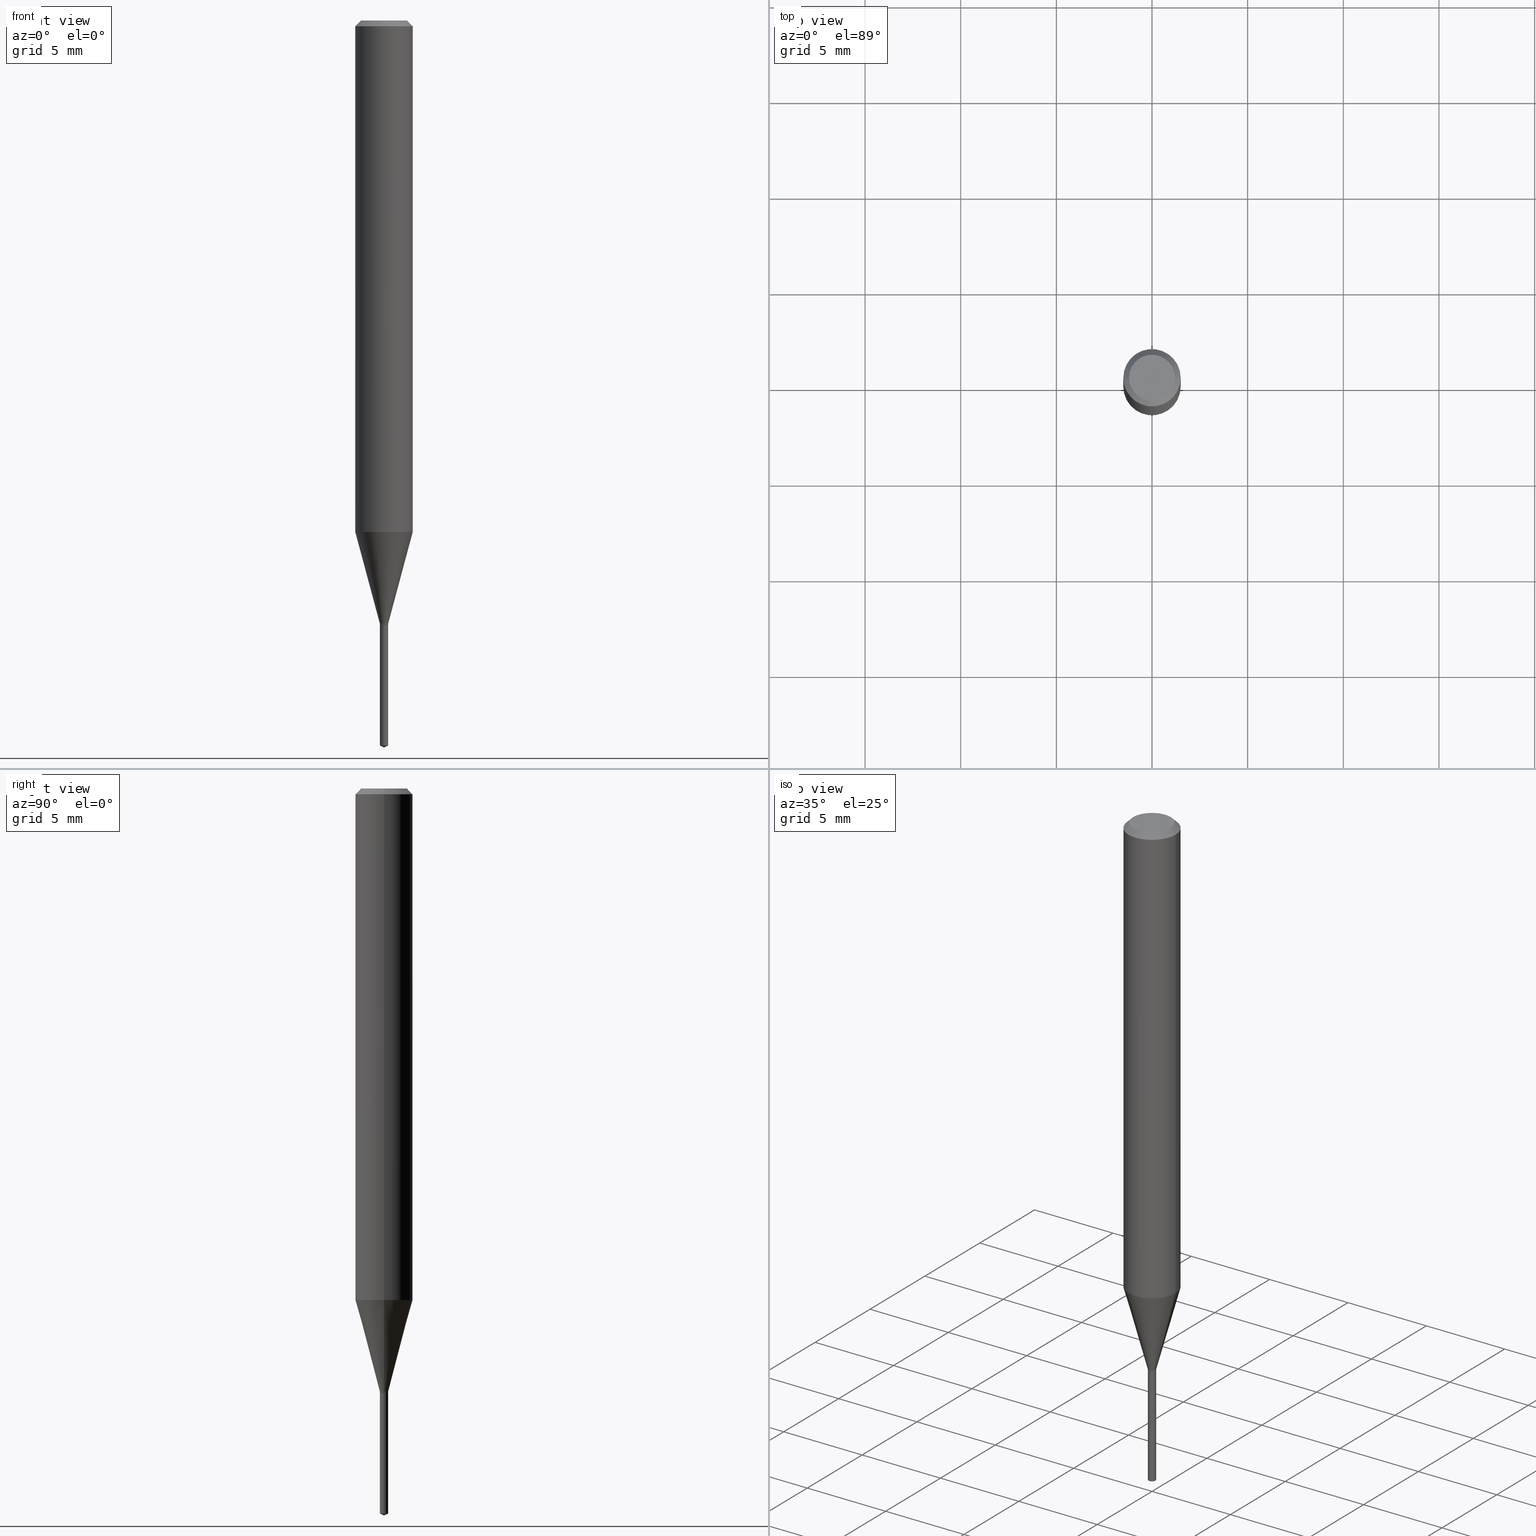
[diagram: canonical four-view strip — front | top / right | iso, engineering-drawing reading convention]
A machine part, canonical four-view strip (front | top / right | iso — engineering-drawing reading convention). The complete STEP part file that produces these views, byte-faithful:
ISO-10303-21;
HEADER;
FILE_DESCRIPTION (( 'STEP AP203' ),
    '1' );
FILE_NAME ('07762.STEP',
    '2024-04-24T02:29:43',
    ( '' ),
    ( '' ),
    'SwSTEP 2.0',
    'SolidWorks 2023',
    '' );
FILE_SCHEMA (( 'CONFIG_CONTROL_DESIGN' ));
ENDSEC;

DATA;
#1 = CALENDAR_DATE ( 2024, 23, 4 ) ;
#2 = ORIENTED_EDGE ( 'NONE', *, *, #407, .F. ) ;
#3 = DIRECTION ( 'NONE',  ( -6.982962677686265922E-15, -1.000000000000000000, 0.000000000000000000 ) ) ;
#4 = ORIENTED_EDGE ( 'NONE', *, *, #159, .F. ) ;
#5 = CIRCLE ( 'NONE', #366, 0.008449999999999999178 ) ;
#6 = LINE ( 'NONE', #398, #98 ) ;
#7 = VERTEX_POINT ( 'NONE', #429 ) ;
#8 = PERSON_AND_ORGANIZATION ( #271, #49 ) ;
#9 = DIRECTION ( 'NONE',  ( -2.445468806185136597E-29, 3.491481338843145583E-15, 1.000000000000000000 ) ) ;
#10 = PERSON_AND_ORGANIZATION_ROLE ( 'design_owner' ) ;
#11 = DIRECTION ( 'NONE',  ( 0.7071067811865453523, -7.319954787623248157E-15, -0.7071067811865496822 ) ) ;
#12 = CIRCLE ( 'NONE', #211, 0.05904999999999999832 ) ;
#13 = ADVANCED_FACE ( 'NONE', ( #458 ), #180, .T. ) ;
#14 = ORIENTED_EDGE ( 'NONE', *, *, #324, .F. ) ;
#15 = ORIENTED_EDGE ( 'NONE', *, *, #364, .T. ) ;
#16 = AXIS2_PLACEMENT_3D ( 'NONE', #413, #377, #486 ) ;
#17 = AXIS2_PLACEMENT_3D ( 'NONE', #328, #215, #233 ) ;
#18 = EDGE_CURVE ( 'NONE', #230, #111, #453, .T. ) ;
#19 = ORIENTED_EDGE ( 'NONE', *, *, #74, .F. ) ;
#20 = DIRECTION ( 'NONE',  ( -2.445468806185136597E-29, 3.491481338843145583E-15, 1.000000000000000000 ) ) ;
#21 = PLANE ( 'NONE',  #322 ) ;
#22 = AXIS2_PLACEMENT_3D ( 'NONE', #410, #183, #331 ) ;
#23 = CARTESIAN_POINT ( 'NONE',  ( 8.265746106709734507E-48, -1.180129479067563789E-33, -3.380025165646692144E-19 ) ) ;
#24 = DIRECTION ( 'NONE',  ( -2.445468806185136597E-29, 3.491481338843145583E-15, 1.000000000000000000 ) ) ;
#25 = CARTESIAN_POINT ( 'NONE',  ( 3.036294069759465269E-29, -4.335023230307649634E-15, -1.241600000000000037 ) ) ;
#26 = EDGE_LOOP ( 'NONE', ( #80, #388, #32, #199 ) ) ;
#27 = LINE ( 'NONE', #222, #467 ) ;
#28 = FACE_OUTER_BOUND ( 'NONE', #319, .T. ) ;
#29 = CARTESIAN_POINT ( 'NONE',  ( -5.900603462641245587E-17, -0.008450000000005210288, -1.492159700288590019 ) ) ;
#30 = FACE_OUTER_BOUND ( 'NONE', #422, .T. ) ;
#31 = ORIENTED_EDGE ( 'NONE', *, *, #254, .T. ) ;
#32 = ORIENTED_EDGE ( 'NONE', *, *, #231, .T. ) ;
#33 = ADVANCED_FACE ( 'NONE', ( #196 ), #345, .T. ) ;
#34 = CARTESIAN_POINT ( 'NONE',  ( 2.574487409809273648E-29, -3.675685711345442861E-15, -1.052758229137014556 ) ) ;
#35 = DIRECTION ( 'NONE',  ( 1.000000000000000000, -6.982962677686293532E-15, 0.000000000000000000 ) ) ;
#36 = LINE ( 'NONE', #192, #403 ) ;
#37 = VERTEX_POINT ( 'NONE', #157 ) ;
#38 = ADVANCED_FACE ( 'NONE', ( #107 ), #282, .T. ) ;
#39 = AXIS2_PLACEMENT_3D ( 'NONE', #146, #416, #376 ) ;
#40 = ORIENTED_EDGE ( 'NONE', *, *, #359, .F. ) ;
#41 = ORIENTED_EDGE ( 'NONE', *, *, #234, .F. ) ;
#42 = CARTESIAN_POINT ( 'NONE',  ( -0.008449999999999999178, -4.278473850474763688E-15, -1.243600000000000039 ) ) ;
#43 = APPROVAL_PERSON_ORGANIZATION ( #242, #83, #169 ) ;
#44 = LENGTH_MEASURE_WITH_UNIT ( LENGTH_MEASURE( 0.02539999999999999897 ), #414 );
#45 = DIRECTION ( 'NONE',  ( 1.000000000000000000, -6.982962677686293532E-15, 0.000000000000000000 ) ) ;
#46 = ORIENTED_EDGE ( 'NONE', *, *, #234, .T. ) ;
#47 = CARTESIAN_POINT ( 'NONE',  ( 0.007949999999999998734, -4.399266486942363332E-15, -1.244099999999999984 ) ) ;
#48 = CARTESIAN_POINT ( 'NONE',  ( 0.000000000000000000, 0.000000000000000000, 0.000000000000000000 ) ) ;
#49 = ORGANIZATION ( 'UNSPECIFIED', 'UNSPECIFIED', '' ) ;
#50 = CARTESIAN_POINT ( 'NONE',  ( 3.649026084519317183E-29, -5.209853356614744857E-15, -1.492159700288590019 ) ) ;
#51 = PERSON_AND_ORGANIZATION ( #271, #49 ) ;
#52 = CARTESIAN_POINT ( 'NONE',  ( 6.004086117176494469E-17, 0.008449999999994789804, -1.492159700288590019 ) ) ;
#53 = ADVANCED_FACE ( 'NONE', ( #474 ), #352, .T. ) ;
#54 = ORIENTED_EDGE ( 'NONE', *, *, #342, .T. ) ;
#55 = APPLICATION_PROTOCOL_DEFINITION ( 'international standard', 'config_control_design', 1994, #238 ) ;
#56 = MANIFOLD_SOLID_BREP ( 'Body-Move/Copy2[2]', #119 ) ;
#57 = APPROVAL_ROLE ( '' ) ;
#58 = APPROVAL ( #95, 'UNSPECIFIED' ) ;
#59 = CALENDAR_DATE ( 2024, 23, 4 ) ;
#60 = CC_DESIGN_SECURITY_CLASSIFICATION ( #201, ( #191 ) ) ;
#61 = FACE_OUTER_BOUND ( 'NONE', #363, .T. ) ;
#62 = VERTEX_POINT ( 'NONE', #204 ) ;
#63 = CARTESIAN_POINT ( 'NONE',  ( -0.04724000000000000421, 3.504923541997677355E-16, -3.380025165670481712E-19 ) ) ;
#64 = APPLICATION_PROTOCOL_DEFINITION ( 'international standard', 'config_control_design', 1994, #310 ) ;
#65 = VECTOR ( 'NONE', #355, 39.37007874015748143 ) ;
#66 = LOCAL_TIME ( 22, 29, 43.00000000000000000, #351 ) ;
#67 = ORIENTED_EDGE ( 'NONE', *, *, #178, .T. ) ;
#68 = DIRECTION ( 'NONE',  ( -0.7071067811865453523, 2.468850131082234184E-15, -0.7071067811865496822 ) ) ;
#69 = CARTESIAN_POINT ( 'NONE',  ( -0.007949999999999998734, -4.284614558987718685E-15, -1.244099999999999984 ) ) ;
#70 =( CONVERSION_BASED_UNIT ( 'INCH', #44 ) LENGTH_UNIT ( ) NAMED_UNIT ( #348 ) );
#71 = ORIENTED_EDGE ( 'NONE', *, *, #315, .T. ) ;
#72 = DIRECTION ( 'NONE',  ( 6.982962677686265922E-15, 1.000000000000000000, -3.491503948252676363E-15 ) ) ;
#73 = DIRECTION ( 'NONE',  ( -6.982962677686265922E-15, -1.000000000000000000, 0.000000000000000000 ) ) ;
#74 = EDGE_CURVE ( 'NONE', #7, #210, #170, .T. ) ;
#75 = DIRECTION ( 'NONE',  ( 1.000000000000000000, -6.982962677686266711E-15, 4.876185090822587894E-29 ) ) ;
#76 = LINE ( 'NONE', #480, #164 ) ;
#77 = ADVANCED_FACE ( 'NONE', ( #61 ), #21, .F. ) ;
#78 = VERTEX_POINT ( 'NONE', #29 ) ;
#79 = VECTOR ( 'NONE', #89, 39.37007874015748854 ) ;
#80 = ORIENTED_EDGE ( 'NONE', *, *, #281, .F. ) ;
#81 = LOCAL_TIME ( 22, 29, 43.00000000000000000, #278 ) ;
#82 = CARTESIAN_POINT ( 'NONE',  ( 3.042407741774928155E-29, -4.343751933654757151E-15, -1.244099999999999984 ) ) ;
#83 = APPROVAL ( #400, 'UNSPECIFIED' ) ;
#84 = COORDINATED_UNIVERSAL_TIME_OFFSET ( 5, 0, .BEHIND. ) ;
#85 = DIRECTION ( 'NONE',  ( -2.445453018118844559E-29, 3.491503948252676758E-15, 1.000000000000000000 ) ) ;
#86 = CARTESIAN_POINT ( 'NONE',  ( 3.036294069759465269E-29, -4.335023230307649634E-15, -1.241600000000000037 ) ) ;
#87 = CIRCLE ( 'NONE', #147, 0.008449999999999999178 ) ;
#88 = DATE_AND_TIME ( #432, #435 ) ;
#89 = DIRECTION ( 'NONE',  ( 6.439704144416976711E-15, 0.9063077870366447186, 0.4226182617407108211 ) ) ;
#90 = APPROVAL ( #123, 'UNSPECIFIED' ) ;
#91 = EDGE_CURVE ( 'NONE', #153, #273, #239, .T. ) ;
#92 = CIRCLE ( 'NONE', #321, 0.007949999999999998734 ) ;
#93 = VECTOR ( 'NONE', #419, 39.37007874015748143 ) ;
#94 = APPROVAL_DATE_TIME ( #475, #58 ) ;
#95 = APPROVAL_STATUS ( 'not_yet_approved' ) ;
#96 = VERTEX_POINT ( 'NONE', #182 ) ;
#97 = DIRECTION ( 'NONE',  ( -6.982962677686265922E-15, -1.000000000000000000, 0.000000000000000000 ) ) ;
#98 = VECTOR ( 'NONE', #357, 39.37007874015748143 ) ;
#99 = UNCERTAINTY_MEASURE_WITH_UNIT (LENGTH_MEASURE( 1.000000000000000082E-05 ), #70, 'distance_accuracy_value', 'NONE');
#100 = CARTESIAN_POINT ( 'NONE',  ( 3.042407741774928155E-29, -4.343751933654757151E-15, -1.244099999999999984 ) ) ;
#101 = FACE_OUTER_BOUND ( 'NONE', #139, .T. ) ;
#102 = ORIENTED_EDGE ( 'NONE', *, *, #91, .T. ) ;
#103 = DIRECTION ( 'NONE',  ( -2.445453018118844278E-29, 3.491503948252676363E-15, 1.000000000000000000 ) ) ;
#104 = CARTESIAN_POINT ( 'NONE',  ( 2.888098660104664204E-31, -4.123439461173780263E-17, -0.01181000000000007218 ) ) ;
#105 = DIRECTION ( 'NONE',  ( -2.445453018118844559E-29, 3.491503948252676758E-15, 1.000000000000000000 ) ) ;
#106 = CIRCLE ( 'NONE', #412, 0.04724000000000000421 ) ;
#107 = FACE_OUTER_BOUND ( 'NONE', #305, .T. ) ;
#108 = LOCAL_TIME ( 22, 29, 43.00000000000000000, #84 ) ;
#109 = FACE_OUTER_BOUND ( 'NONE', #26, .T. ) ;
#110 = DIRECTION ( 'NONE',  ( -2.445468806185136597E-29, 3.491481338843145583E-15, 1.000000000000000000 ) ) ;
#111 = VERTEX_POINT ( 'NONE', #367 ) ;
#112 = LINE ( 'NONE', #227, #392 ) ;
#113 = ORIENTED_EDGE ( 'NONE', *, *, #232, .T. ) ;
#114 = ORIENTED_EDGE ( 'NONE', *, *, #342, .F. ) ;
#115 = DIRECTION ( 'NONE',  ( 1.000000000000000000, -6.982962677686264344E-15, 0.000000000000000000 ) ) ;
#116 = DIRECTION ( 'NONE',  ( -2.445453018118844559E-29, 3.491503948252676758E-15, 1.000000000000000000 ) ) ;
#117 = CARTESIAN_POINT ( 'NONE',  ( 3.041185007371835914E-29, -4.342006192985336437E-15, -1.243600000000000039 ) ) ;
#118 = ORIENTED_EDGE ( 'NONE', *, *, #161, .T. ) ;
#119 = CLOSED_SHELL ( 'NONE', ( #417, #134, #198, #13, #53, #246, #438, #33, #473, #168, #437, #280 ) ) ;
#120 = AXIS2_PLACEMENT_3D ( 'NONE', #34, #482, #115 ) ;
#121 = EDGE_LOOP ( 'NONE', ( #223, #375, #225, #197 ) ) ;
#122 = DIRECTION ( 'NONE',  ( 1.000000000000000000, -6.982962677686291165E-15, 0.000000000000000000 ) ) ;
#123 = APPROVAL_STATUS ( 'not_yet_approved' ) ;
#124 = AXIS2_PLACEMENT_3D ( 'NONE', #262, #430, #326 ) ;
#125 = AXIS2_PLACEMENT_3D ( 'NONE', #421, #261, #73 ) ;
#126 = EDGE_CURVE ( 'NONE', #62, #210, #163, .T. ) ;
#127 = ORIENTED_EDGE ( 'NONE', *, *, #137, .F. ) ;
#128 = ORIENTED_EDGE ( 'NONE', *, *, #456, .T. ) ;
#129 = ORIENTED_EDGE ( 'NONE', *, *, #161, .F. ) ;
#130 = ORIENTED_EDGE ( 'NONE', *, *, #281, .T. ) ;
#131 = CC_DESIGN_PERSON_AND_ORGANIZATION_ASSIGNMENT ( #51, #10, ( #402 ) ) ;
#132 = PRODUCT_RELATED_PRODUCT_CATEGORY ( 'detail', '', ( #402 ) ) ;
#133 = ORIENTED_EDGE ( 'NONE', *, *, #126, .F. ) ;
#134 = ADVANCED_FACE ( 'NONE', ( #109 ), #311, .T. ) ;
#135 = AXIS2_PLACEMENT_3D ( 'NONE', #464, #162, #97 ) ;
#136 = AXIS2_PLACEMENT_3D ( 'NONE', #25, #442, #35 ) ;
#137 = EDGE_CURVE ( 'NONE', #210, #62, #288, .T. ) ;
#138 = DIRECTION ( 'NONE',  ( -2.445468806185136877E-29, 3.491481338843145188E-15, 1.000000000000000000 ) ) ;
#139 = EDGE_LOOP ( 'NONE', ( #214, #298, #267, #133 ) ) ;
#140 = CC_DESIGN_PERSON_AND_ORGANIZATION_ASSIGNMENT ( #302, #461, ( #201 ) ) ;
#141 = DIRECTION ( 'NONE',  ( -2.445468806185136597E-29, 3.491481338843145583E-15, 1.000000000000000000 ) ) ;
#142 = DIRECTION ( 'NONE',  ( 1.000000000000000000, -6.982962677686291165E-15, 0.000000000000000000 ) ) ;
#143 = DIRECTION ( 'NONE',  ( 1.000000000000000000, -6.982962677686266711E-15, 4.876176775795936353E-29 ) ) ;
#144 = ORIENTED_EDGE ( 'NONE', *, *, #178, .F. ) ;
#145 = CYLINDRICAL_SURFACE ( 'NONE', #313, 0.008449999999999999178 ) ;
#146 = CARTESIAN_POINT ( 'NONE',  ( 4.132873053354867254E-48, -5.900647395337818946E-34, -1.690012582823346072E-19 ) ) ;
#147 = AXIS2_PLACEMENT_3D ( 'NONE', #50, #401, #314 ) ;
#148 = LOCAL_TIME ( 22, 29, 43.00000000000000000, #247 ) ;
#149 = EDGE_LOOP ( 'NONE', ( #379, #15, #127, #19 ) ) ;
#150 = CARTESIAN_POINT ( 'NONE',  ( 8.265746106709734507E-48, -1.180129479067563789E-33, -3.380025165646692144E-19 ) ) ;
#151 = VERTEX_POINT ( 'NONE', #69 ) ;
#152 = CARTESIAN_POINT ( 'NONE',  ( -0.008449999999999999178, 6.004086117172845987E-17, -4.156500151265395353E-31 ) ) ;
#153 = VERTEX_POINT ( 'NONE', #286 ) ;
#154 = ORIENTED_EDGE ( 'NONE', *, *, #315, .F. ) ;
#155 = LINE ( 'NONE', #455, #391 ) ;
#156 = FACE_OUTER_BOUND ( 'NONE', #268, .T. ) ;
#157 = CARTESIAN_POINT ( 'NONE',  ( -5.900603462641852024E-17, -0.008450000000004342926, -1.244099999999999984 ) ) ;
#158 = DIRECTION ( 'NONE',  ( -2.445468806185136597E-29, 3.491481338843145583E-15, 1.000000000000000000 ) ) ;
#159 = EDGE_CURVE ( 'NONE', #151, #263, #470, .T. ) ;
#160 = PERSON_AND_ORGANIZATION_ROLE ( 'design_supplier' ) ;
#161 = EDGE_CURVE ( 'NONE', #263, #151, #92, .T. ) ;
#162 = DIRECTION ( 'NONE',  ( -2.445453018118844559E-29, 3.491503948252676758E-15, 1.000000000000000000 ) ) ;
#163 = CIRCLE ( 'NONE', #448, 0.008449999999999999178 ) ;
#164 = VECTOR ( 'NONE', #224, 39.37007874015748854 ) ;
#165 = DIRECTION ( 'NONE',  ( 0.000000000000000000, 0.000000000000000000, 1.000000000000000000 ) ) ;
#166 = CARTESIAN_POINT ( 'NONE',  ( 2.888098660104664204E-31, -4.123439461173780263E-17, -0.01181000000000007218 ) ) ;
#167 = PERSON_AND_ORGANIZATION ( #271, #49 ) ;
#168 = ADVANCED_FACE ( 'NONE', ( #28 ), #188, .F. ) ;
#169 = APPROVAL_ROLE ( '' ) ;
#170 = LINE ( 'NONE', #312, #65 ) ;
#171 = ADVANCED_FACE ( 'NONE', ( #228 ), #175, .T. ) ;
#172 = CIRCLE ( 'NONE', #485, 0.05904999999999999832 ) ;
#173 = DATE_TIME_ROLE ( 'creation_date' ) ;
#174 = PRODUCT_DEFINITION ( 'UNKNOWN', '', #191, #285 ) ;
#175 = CONICAL_SURFACE ( 'NONE', #294, 84.42940631927042716, 1.134464013796298243 ) ;
#176 = CONICAL_SURFACE ( 'NONE', #361, 0.05904999999999999832, 0.7853981633974452814 ) ;
#177 = CC_DESIGN_DATE_AND_TIME_ASSIGNMENT ( #356, #173, ( #174 ) ) ;
#178 = EDGE_CURVE ( 'NONE', #62, #153, #155, .T. ) ;
#179 = EDGE_CURVE ( 'NONE', #230, #78, #87, .T. ) ;
#180 = CONICAL_SURFACE ( 'NONE', #229, 0.008449999999999999178, 0.2617993877991499074 ) ;
#181 = VECTOR ( 'NONE', #138, 39.37007874015748143 ) ;
#182 = CARTESIAN_POINT ( 'NONE',  ( 0.04724000000000000421, -3.852183633974369345E-16, -3.380025165621689721E-19 ) ) ;
#183 = DIRECTION ( 'NONE',  ( -2.445468806185136597E-29, 3.491481338843145583E-15, 1.000000000000000000 ) ) ;
#184 = LINE ( 'NONE', #426, #219 ) ;
#185 = DIRECTION ( 'NONE',  ( -2.445468806185136597E-29, 3.491481338843145583E-15, 1.000000000000000000 ) ) ;
#186 = ORIENTED_EDGE ( 'NONE', *, *, #179, .F. ) ;
#187 = DIRECTION ( 'NONE',  ( 1.000000000000000000, -6.982962677686266711E-15, 0.000000000000000000 ) ) ;
#188 = PLANE ( 'NONE',  #39 ) ;
#189 = CARTESIAN_POINT ( 'NONE',  ( 2.888098660104664204E-31, -4.123439461173780263E-17, -0.01181000000000007218 ) ) ;
#190 = DIRECTION ( 'NONE',  ( 2.445468806185136597E-29, -3.491481338843145583E-15, -1.000000000000000000 ) ) ;
#191 = PRODUCT_DEFINITION_FORMATION_WITH_SPECIFIED_SOURCE ( 'ANY', '', #402, .NOT_KNOWN. ) ;
#192 = CARTESIAN_POINT ( 'NONE',  ( 0.05904999999999999832, -4.463468013801466955E-16, -0.01181000000000007218 ) ) ;
#193 = VERTEX_POINT ( 'NONE', #433 ) ;
#194 = LINE ( 'NONE', #445, #450 ) ;
#195 = CARTESIAN_POINT ( 'NONE',  ( -9.261901597635378744E-28, 1.322371744356641908E-13, 37.87397874015748300 ) ) ;
#196 = FACE_OUTER_BOUND ( 'NONE', #415, .T. ) ;
#197 = ORIENTED_EDGE ( 'NONE', *, *, #365, .F. ) ;
#198 = ADVANCED_FACE ( 'NONE', ( #244 ), #284, .T. ) ;
#199 = ORIENTED_EDGE ( 'NONE', *, *, #353, .F. ) ;
#200 = AXIS2_PLACEMENT_3D ( 'NONE', #220, #339, #372 ) ;
#201 = SECURITY_CLASSIFICATION ( '', '', #428 ) ;
#202 = CARTESIAN_POINT ( 'NONE',  ( 0.000000000000000000, 0.000000000000000000, 0.000000000000000000 ) ) ;
#203 = PERSON_AND_ORGANIZATION ( #271, #49 ) ;
#204 = CARTESIAN_POINT ( 'NONE',  ( -0.008449999999999999178, -4.278473850474763688E-15, -1.241600000000000037 ) ) ;
#205 = EDGE_CURVE ( 'NONE', #96, #193, #36, .T. ) ;
#206 = PERSON_AND_ORGANIZATION_ROLE ( 'creator' ) ;
#207 = CIRCLE ( 'NONE', #120, 0.05905000000000013710 ) ;
#208 = CC_DESIGN_DATE_AND_TIME_ASSIGNMENT ( #434, #250, ( #201 ) ) ;
#209 = ORIENTED_EDGE ( 'NONE', *, *, #213, .F. ) ;
#210 = VERTEX_POINT ( 'NONE', #243 ) ;
#211 = AXIS2_PLACEMENT_3D ( 'NONE', #166, #307, #236 ) ;
#212 = CONICAL_SURFACE ( 'NONE', #329, 0.007949999999999998734, 0.7853981633975496424 ) ;
#213 = EDGE_CURVE ( 'NONE', #263, #7, #6, .T. ) ;
#214 = ORIENTED_EDGE ( 'NONE', *, *, #364, .F. ) ;
#215 = DIRECTION ( 'NONE',  ( -2.445468806185136597E-29, 3.491481338843145583E-15, 1.000000000000000000 ) ) ;
#216 = CARTESIAN_POINT ( 'NONE',  ( 3.042407741774928155E-29, -4.343751933654757151E-15, -1.244099999999999984 ) ) ;
#217 = DIRECTION ( 'NONE',  ( -2.445468806185136597E-29, 3.491481338843145583E-15, 1.000000000000000000 ) ) ;
#218 = CC_DESIGN_PERSON_AND_ORGANIZATION_ASSIGNMENT ( #8, #206, ( #174 ) ) ;
#219 = VECTOR ( 'NONE', #333, 39.37007874015748143 ) ;
#220 = CARTESIAN_POINT ( 'NONE',  ( 2.574487409809273648E-29, -3.675685711345442861E-15, -1.052758229137014556 ) ) ;
#221 = CARTESIAN_POINT ( 'NONE',  ( 3.658642260407602849E-29, -5.223639056980828932E-15, -1.496099999999999985 ) ) ;
#222 = CARTESIAN_POINT ( 'NONE',  ( -0.007949999999999998734, -4.287263786161829886E-15, -1.244099999999999984 ) ) ;
#223 = ORIENTED_EDGE ( 'NONE', *, *, #306, .F. ) ;
#224 = DIRECTION ( 'NONE',  ( 0.2588190451025211836, 1.565188264969622559E-15, 0.9659258262890679791 ) ) ;
#225 = ORIENTED_EDGE ( 'NONE', *, *, #213, .T. ) ;
#226 = CC_DESIGN_PERSON_AND_ORGANIZATION_ASSIGNMENT ( #203, #160, ( #191 ) ) ;
#227 = CARTESIAN_POINT ( 'NONE',  ( -0.05904999999999999832, 3.711095515056362547E-16, -0.01181000000000007218 ) ) ;
#228 = FACE_OUTER_BOUND ( 'NONE', #440, .T. ) ;
#229 = AXIS2_PLACEMENT_3D ( 'NONE', #86, #383, #45 ) ;
#230 = VERTEX_POINT ( 'NONE', #52 ) ;
#231 = EDGE_CURVE ( 'NONE', #193, #394, #12, .T. ) ;
#232 = EDGE_CURVE ( 'NONE', #296, #230, #390, .T. ) ;
#233 = DIRECTION ( 'NONE',  ( 1.000000000000000000, -6.982962677686265922E-15, 4.876176775795935232E-29 ) ) ;
#234 = EDGE_CURVE ( 'NONE', #37, #111, #277, .T. ) ;
#235 = FACE_OUTER_BOUND ( 'NONE', #481, .T. ) ;
#236 = DIRECTION ( 'NONE',  ( 1.000000000000000000, -6.982962677686266711E-15, 0.000000000000000000 ) ) ;
#237 = EDGE_LOOP ( 'NONE', ( #323, #374, #54, #291 ) ) ;
#238 = APPLICATION_CONTEXT ( 'configuration controlled 3d designs of mechanical parts and assemblies' ) ;
#239 = CIRCLE ( 'NONE', #200, 0.05905000000000013710 ) ;
#240 = CARTESIAN_POINT ( 'NONE',  ( 3.042407741774928155E-29, -4.343751933654757151E-15, -1.244099999999999984 ) ) ;
#241 = AXIS2_PLACEMENT_3D ( 'NONE', #202, #165, #397 ) ;
#242 = PERSON_AND_ORGANIZATION ( #271, #49 ) ;
#243 = CARTESIAN_POINT ( 'NONE',  ( 0.008449999999999999178, -4.394029264934098821E-15, -1.241600000000000037 ) ) ;
#244 = FACE_OUTER_BOUND ( 'NONE', #264, .T. ) ;
#245 = EDGE_CURVE ( 'NONE', #78, #230, #439, .T. ) ;
#246 = ADVANCED_FACE ( 'NONE', ( #101 ), #409, .T. ) ;
#247 = COORDINATED_UNIVERSAL_TIME_OFFSET ( 5, 0, .BEHIND. ) ;
#248 = CARTESIAN_POINT ( 'NONE',  ( 0.000000000000000000, 0.000000000000000000, 0.000000000000000000 ) ) ;
#249 = EDGE_LOOP ( 'NONE', ( #118, #465, #299, #209 ) ) ;
#250 = DATE_TIME_ROLE ( 'classification_date' ) ;
#251 = ORIENTED_EDGE ( 'NONE', *, *, #245, .T. ) ;
#252 = AXIS2_PLACEMENT_3D ( 'NONE', #117, #110, #270 ) ;
#253 = PERSON_AND_ORGANIZATION ( #271, #49 ) ;
#254 = EDGE_CURVE ( 'NONE', #273, #153, #207, .T. ) ;
#255 = DIRECTION ( 'NONE',  ( -2.445468806185136597E-29, 3.491481338843145583E-15, 1.000000000000000000 ) ) ;
#256 = ORIENTED_EDGE ( 'NONE', *, *, #205, .F. ) ;
#257 = FACE_OUTER_BOUND ( 'NONE', #249, .T. ) ;
#258 = DIRECTION ( 'NONE',  ( 1.000000000000000000, -6.982962677686291165E-15, 0.000000000000000000 ) ) ;
#259 =( GEOMETRIC_REPRESENTATION_CONTEXT ( 3 ) GLOBAL_UNCERTAINTY_ASSIGNED_CONTEXT ( ( #99 ) ) GLOBAL_UNIT_ASSIGNED_CONTEXT ( ( #70, #452, #266 ) ) REPRESENTATION_CONTEXT ( 'NONE', 'WORKASPACE' ) );
#260 = DIRECTION ( 'NONE',  ( -1.000000000000000000, 6.982962677686266711E-15, 0.000000000000000000 ) ) ;
#261 = DIRECTION ( 'NONE',  ( -2.445453018118844559E-29, 3.491503948252676758E-15, 1.000000000000000000 ) ) ;
#262 = CARTESIAN_POINT ( 'NONE',  ( -9.261901597635378744E-28, 1.322371744356641908E-13, 37.87397874015748300 ) ) ;
#263 = VERTEX_POINT ( 'NONE', #47 ) ;
#264 = EDGE_LOOP ( 'NONE', ( #31, #427, #454, #459 ) ) ;
#265 = DIRECTION ( 'NONE',  ( 1.000000000000000000, -6.982962677686266711E-15, 4.876185090822587894E-29 ) ) ;
#266 =( NAMED_UNIT ( * ) SI_UNIT ( $, .STERADIAN. ) SOLID_ANGLE_UNIT ( ) );
#267 = ORIENTED_EDGE ( 'NONE', *, *, #74, .T. ) ;
#268 = EDGE_LOOP ( 'NONE', ( #129, #4 ) ) ;
#269 = AXIS2_PLACEMENT_3D ( 'NONE', #100, #255, #406 ) ;
#270 = DIRECTION ( 'NONE',  ( 1.000000000000000000, -6.982962677686235156E-15, 0.000000000000000000 ) ) ;
#271 = PERSON ( 'UNSPECIFIED', 'UNSPECIFIED', 'UNSPECIFIED', ('UNSPECIFIED'), ('UNSPECIFIED'), ('UNSPECIFIED') ) ;
#272 = CC_DESIGN_APPROVAL ( #90, ( #191 ) ) ;
#273 = VERTEX_POINT ( 'NONE', #347 ) ;
#274 = MECHANICAL_CONTEXT ( 'NONE', #310, 'mechanical' ) ;
#275 = EDGE_LOOP ( 'NONE', ( #251, #444, #41, #114 ) ) ;
#276 = COORDINATED_UNIVERSAL_TIME_OFFSET ( 5, 0, .BEHIND. ) ;
#277 = CIRCLE ( 'NONE', #381, 0.008449999999999999178 ) ;
#278 = COORDINATED_UNIVERSAL_TIME_OFFSET ( 5, 0, .BEHIND. ) ;
#279 = PERSON_AND_ORGANIZATION ( #271, #49 ) ;
#280 = ADVANCED_FACE ( 'NONE', ( #420 ), #212, .T. ) ;
#281 = EDGE_CURVE ( 'NONE', #96, #287, #106, .T. ) ;
#282 = CONICAL_SURFACE ( 'NONE', #124, 84.42940631927042716, 1.134464013796298243 ) ;
#283 = CIRCLE ( 'NONE', #303, 0.04724000000000000421 ) ;
#284 = CYLINDRICAL_SURFACE ( 'NONE', #483, 0.05905000000000006771 ) ;
#285 = DESIGN_CONTEXT ( 'detailed design', #238, 'design' ) ;
#286 = CARTESIAN_POINT ( 'NONE',  ( -0.05905000000000013710, -3.256110225879102579E-15, -1.052758229137014556 ) ) ;
#287 = VERTEX_POINT ( 'NONE', #63 ) ;
#288 = CIRCLE ( 'NONE', #16, 0.008449999999999999178 ) ;
#289 = CALENDAR_DATE ( 2024, 23, 4 ) ;
#290 = CC_DESIGN_PERSON_AND_ORGANIZATION_ASSIGNMENT ( #279, #395, ( #191 ) ) ;
#291 = ORIENTED_EDGE ( 'NONE', *, *, #456, .F. ) ;
#292 = CARTESIAN_POINT ( 'NONE',  ( -0.05905000000000006771, 4.195754854663396409E-16, -2.904631170795525045E-30 ) ) ;
#293 = CYLINDRICAL_SURFACE ( 'NONE', #125, 0.008449999999999999178 ) ;
#294 = AXIS2_PLACEMENT_3D ( 'NONE', #195, #116, #343 ) ;
#295 = DIRECTION ( 'NONE',  ( -1.000000000000000000, 6.982962677686266711E-15, 0.000000000000000000 ) ) ;
#296 = VERTEX_POINT ( 'NONE', #337 ) ;
#297 = CARTESIAN_POINT ( 'NONE',  ( -0.05904999999999999832, -1.438884567512250013E-15, -0.01181000000000007218 ) ) ;
#298 = ORIENTED_EDGE ( 'NONE', *, *, #365, .T. ) ;
#299 = ORIENTED_EDGE ( 'NONE', *, *, #316, .F. ) ;
#300 = CARTESIAN_POINT ( 'NONE',  ( 3.042407741774928155E-29, -4.343751933654757151E-15, -1.244099999999999984 ) ) ;
#301 = AXIS2_PLACEMENT_3D ( 'NONE', #490, #447, #143 ) ;
#302 = PERSON_AND_ORGANIZATION ( #271, #49 ) ;
#303 = AXIS2_PLACEMENT_3D ( 'NONE', #150, #217, #265 ) ;
#304 = ORIENTED_EDGE ( 'NONE', *, *, #232, .F. ) ;
#305 = EDGE_LOOP ( 'NONE', ( #304, #466, #186 ) ) ;
#306 = EDGE_CURVE ( 'NONE', #151, #330, #27, .T. ) ;
#307 = DIRECTION ( 'NONE',  ( -2.445468806185136597E-29, 3.491481338843145583E-15, 1.000000000000000000 ) ) ;
#308 = ADVANCED_FACE ( 'NONE', ( #484 ), #145, .T. ) ;
#309 = CALENDAR_DATE ( 2024, 23, 4 ) ;
#310 = APPLICATION_CONTEXT ( 'configuration controlled 3d designs of mechanical parts and assemblies' ) ;
#311 = CONICAL_SURFACE ( 'NONE', #477, 0.05904999999999999832, 0.7853981633974452814 ) ;
#312 = CARTESIAN_POINT ( 'NONE',  ( 0.008449999999999999178, -5.900603462644894069E-17, 4.120369375547564925E-31 ) ) ;
#313 = AXIS2_PLACEMENT_3D ( 'NONE', #300, #451, #488 ) ;
#314 = DIRECTION ( 'NONE',  ( -6.982962677686265922E-15, -1.000000000000000000, 0.000000000000000000 ) ) ;
#315 = EDGE_CURVE ( 'NONE', #287, #96, #283, .T. ) ;
#316 = EDGE_CURVE ( 'NONE', #7, #330, #338, .T. ) ;
#317 = APPROVAL_ROLE ( '' ) ;
#318 = SHAPE_DEFINITION_REPRESENTATION ( #320, #476 ) ;
#319 = EDGE_LOOP ( 'NONE', ( #71, #130 ) ) ;
#320 = PRODUCT_DEFINITION_SHAPE ( 'NONE', 'NONE',  #174 ) ;
#321 = AXIS2_PLACEMENT_3D ( 'NONE', #362, #20, #122 ) ;
#322 = AXIS2_PLACEMENT_3D ( 'NONE', #216, #327, #72 ) ;
#323 = ORIENTED_EDGE ( 'NONE', *, *, #18, .F. ) ;
#324 = EDGE_CURVE ( 'NONE', #394, #193, #172, .T. ) ;
#325 = ORIENTED_EDGE ( 'NONE', *, *, #137, .T. ) ;
#326 = DIRECTION ( 'NONE',  ( -6.982962677686266711E-15, -1.000000000000000000, 3.520397390770616770E-15 ) ) ;
#327 = DIRECTION ( 'NONE',  ( 2.445453018118844559E-29, -3.491503948252676363E-15, -1.000000000000000000 ) ) ;
#328 = CARTESIAN_POINT ( 'NONE',  ( 0.000000000000000000, 0.000000000000000000, 0.000000000000000000 ) ) ;
#329 = AXIS2_PLACEMENT_3D ( 'NONE', #370, #380, #258 ) ;
#330 = VERTEX_POINT ( 'NONE', #42 ) ;
#331 = DIRECTION ( 'NONE',  ( 1.000000000000000000, -6.982962677686235156E-15, 0.000000000000000000 ) ) ;
#332 = DIRECTION ( 'NONE',  ( 1.000000000000000000, -6.982962677686293532E-15, 0.000000000000000000 ) ) ;
#333 = DIRECTION ( 'NONE',  ( -2.445468806185136877E-29, 3.491481338843145188E-15, 1.000000000000000000 ) ) ;
#334 = DIRECTION ( 'NONE',  ( -2.445453018118844278E-29, 3.491503948252676363E-15, 1.000000000000000000 ) ) ;
#335 = FACE_OUTER_BOUND ( 'NONE', #275, .T. ) ;
#336 = DIRECTION ( 'NONE',  ( -6.982962677686265922E-15, -1.000000000000000000, 0.000000000000000000 ) ) ;
#337 = CARTESIAN_POINT ( 'NONE',  ( 3.658642260407602849E-29, -5.223639056980828932E-15, -1.496099999999999985 ) ) ;
#338 = CIRCLE ( 'NONE', #22, 0.008449999999999999178 ) ;
#339 = DIRECTION ( 'NONE',  ( -2.445468806185136597E-29, 3.491481338843145583E-15, 1.000000000000000000 ) ) ;
#340 = LINE ( 'NONE', #221, #478 ) ;
#341 = ORIENTED_EDGE ( 'NONE', *, *, #91, .F. ) ;
#342 = EDGE_CURVE ( 'NONE', #78, #37, #194, .T. ) ;
#343 = DIRECTION ( 'NONE',  ( -6.982962677686266711E-15, -1.000000000000000000, 3.520397390770616770E-15 ) ) ;
#344 = DIRECTION ( 'NONE',  ( -2.445468806185136597E-29, 3.491481338843145583E-15, 1.000000000000000000 ) ) ;
#345 = CYLINDRICAL_SURFACE ( 'NONE', #301, 0.05905000000000006771 ) ;
#346 = ORIENTED_EDGE ( 'NONE', *, *, #408, .F. ) ;
#347 = CARTESIAN_POINT ( 'NONE',  ( 0.05905000000000013710, -4.088029657462817781E-15, -1.052758229137014556 ) ) ;
#348 = DIMENSIONAL_EXPONENTS ( 1.000000000000000000, 0.000000000000000000, 0.000000000000000000, 0.000000000000000000, 0.000000000000000000, 0.000000000000000000, 0.000000000000000000 ) ;
#349 = CLOSED_SHELL ( 'NONE', ( #354, #171, #38, #308, #77 ) ) ;
#350 = AXIS2_PLACEMENT_3D ( 'NONE', #487, #384, #457 ) ;
#351 = COORDINATED_UNIVERSAL_TIME_OFFSET ( 5, 0, .BEHIND. ) ;
#352 = CYLINDRICAL_SURFACE ( 'NONE', #360, 0.008449999999999999178 ) ;
#353 = EDGE_CURVE ( 'NONE', #287, #394, #112, .T. ) ;
#354 = ADVANCED_FACE ( 'NONE', ( #335 ), #293, .T. ) ;
#355 = DIRECTION ( 'NONE',  ( -2.445468806185136877E-29, 3.491481338843145188E-15, 1.000000000000000000 ) ) ;
#356 = DATE_AND_TIME ( #1, #81 ) ;
#357 = DIRECTION ( 'NONE',  ( 0.7071067811866191821, -2.468850131083007662E-15, 0.7071067811864758523 ) ) ;
#358 = CONICAL_SURFACE ( 'NONE', #136, 0.008449999999999999178, 0.2617993877991499074 ) ;
#359 = EDGE_CURVE ( 'NONE', #153, #394, #368, .T. ) ;
#360 = AXIS2_PLACEMENT_3D ( 'NONE', #48, #9, #396 ) ;
#361 = AXIS2_PLACEMENT_3D ( 'NONE', #189, #190, #295 ) ;
#362 = CARTESIAN_POINT ( 'NONE',  ( 3.042407741774928155E-29, -4.343751933654757151E-15, -1.244099999999999984 ) ) ;
#363 = EDGE_LOOP ( 'NONE', ( #46, #128 ) ) ;
#364 = EDGE_CURVE ( 'NONE', #330, #62, #489, .T. ) ;
#365 = EDGE_CURVE ( 'NONE', #330, #7, #460, .T. ) ;
#366 = AXIS2_PLACEMENT_3D ( 'NONE', #373, #105, #336 ) ;
#367 = CARTESIAN_POINT ( 'NONE',  ( 6.004086117176498166E-17, 0.008449999999995655431, -1.244099999999999984 ) ) ;
#368 = LINE ( 'NONE', #292, #93 ) ;
#369 = CARTESIAN_POINT ( 'NONE',  ( 6.004086117175886799E-17, 0.008449999999995655431, -1.244099999999999984 ) ) ;
#370 = CARTESIAN_POINT ( 'NONE',  ( 3.042407741774928155E-29, -4.343751933654757151E-15, -1.244099999999999984 ) ) ;
#371 = MANIFOLD_SOLID_BREP ( 'Body-Move/Copy2[1]', #349 ) ;
#372 = DIRECTION ( 'NONE',  ( 1.000000000000000000, -6.982962677686264344E-15, 0.000000000000000000 ) ) ;
#373 = CARTESIAN_POINT ( 'NONE',  ( 3.042407741774928155E-29, -4.343751933654757151E-15, -1.244099999999999984 ) ) ;
#374 = ORIENTED_EDGE ( 'NONE', *, *, #179, .T. ) ;
#375 = ORIENTED_EDGE ( 'NONE', *, *, #159, .T. ) ;
#376 = DIRECTION ( 'NONE',  ( -1.000000000000000000, 6.982962677686265922E-15, -4.876176775795935793E-29 ) ) ;
#377 = DIRECTION ( 'NONE',  ( -2.445468806185136597E-29, 3.491481338843145583E-15, 1.000000000000000000 ) ) ;
#378 = DIRECTION ( 'NONE',  ( -6.328713451373322836E-15, -0.9063077870366416100, 0.4226182617407170383 ) ) ;
#379 = ORIENTED_EDGE ( 'NONE', *, *, #316, .T. ) ;
#380 = DIRECTION ( 'NONE',  ( -2.445468806185136597E-29, 3.491481338843145583E-15, 1.000000000000000000 ) ) ;
#381 = AXIS2_PLACEMENT_3D ( 'NONE', #240, #85, #3 ) ;
#382 = CC_DESIGN_APPROVAL ( #58, ( #201 ) ) ;
#383 = DIRECTION ( 'NONE',  ( -2.445468806185136597E-29, 3.491481338843145583E-15, 1.000000000000000000 ) ) ;
#384 = DIRECTION ( 'NONE',  ( -2.438088387897960049E-29, 3.491481338843145188E-15, 1.000000000000000000 ) ) ;
#385 = CARTESIAN_POINT ( 'NONE',  ( 3.658681888747289821E-29, -5.223582800248033507E-15, -1.496099999999999985 ) ) ;
#386 = EDGE_LOOP ( 'NONE', ( #325, #67, #436, #2 ) ) ;
#387 = ORIENTED_EDGE ( 'NONE', *, *, #126, .T. ) ;
#388 = ORIENTED_EDGE ( 'NONE', *, *, #205, .T. ) ;
#389 = EDGE_CURVE ( 'NONE', #273, #193, #184, .T. ) ;
#390 = LINE ( 'NONE', #385, #79 ) ;
#391 = VECTOR ( 'NONE', #424, 39.37007874015748854 ) ;
#392 = VECTOR ( 'NONE', #68, 39.37007874015748143 ) ;
#393 = APPROVAL_PERSON_ORGANIZATION ( #253, #58, #57 ) ;
#394 = VERTEX_POINT ( 'NONE', #297 ) ;
#395 = PERSON_AND_ORGANIZATION_ROLE ( 'creator' ) ;
#396 = DIRECTION ( 'NONE',  ( 1.000000000000000000, -6.982962677686265922E-15, 4.876176775795935232E-29 ) ) ;
#397 = DIRECTION ( 'NONE',  ( 1.000000000000000000, 0.000000000000000000, 0.000000000000000000 ) ) ;
#398 = CARTESIAN_POINT ( 'NONE',  ( 0.007949999999999998734, -4.399266486942363332E-15, -1.244099999999999984 ) ) ;
#399 = ORIENTED_EDGE ( 'NONE', *, *, #324, .T. ) ;
#400 = APPROVAL_STATUS ( 'not_yet_approved' ) ;
#401 = DIRECTION ( 'NONE',  ( -2.445453018118844559E-29, 3.491503948252676758E-15, 1.000000000000000000 ) ) ;
#402 = PRODUCT ( '07762', '07762', '', ( #274 ) ) ;
#403 = VECTOR ( 'NONE', #11, 39.37007874015748143 ) ;
#404 = CC_DESIGN_APPROVAL ( #83, ( #174 ) ) ;
#405 = ORIENTED_EDGE ( 'NONE', *, *, #353, .T. ) ;
#406 = DIRECTION ( 'NONE',  ( 1.000000000000000000, -6.982962677686291165E-15, 0.000000000000000000 ) ) ;
#407 = EDGE_CURVE ( 'NONE', #210, #273, #76, .T. ) ;
#408 = EDGE_CURVE ( 'NONE', #296, #78, #340, .T. ) ;
#409 = CYLINDRICAL_SURFACE ( 'NONE', #17, 0.008449999999999999178 ) ;
#410 = CARTESIAN_POINT ( 'NONE',  ( 3.041185007371835914E-29, -4.342006192985336437E-15, -1.243600000000000039 ) ) ;
#411 = VECTOR ( 'NONE', #334, 39.37007874015748143 ) ;
#412 = AXIS2_PLACEMENT_3D ( 'NONE', #23, #158, #75 ) ;
#413 = CARTESIAN_POINT ( 'NONE',  ( 3.036294069759465269E-29, -4.335023230307649634E-15, -1.241600000000000037 ) ) ;
#414 =( LENGTH_UNIT ( ) NAMED_UNIT ( * ) SI_UNIT ( $, .METRE. ) );
#415 = EDGE_LOOP ( 'NONE', ( #40, #102, #472, #14 ) ) ;
#416 = DIRECTION ( 'NONE',  ( 2.438088387897960049E-29, -3.491481338843145188E-15, -1.000000000000000000 ) ) ;
#417 = ADVANCED_FACE ( 'NONE', ( #257 ), #471, .T. ) ;
#418 = DIRECTION ( 'NONE',  ( 2.445468806185136597E-29, -3.491481338843145583E-15, -1.000000000000000000 ) ) ;
#419 = DIRECTION ( 'NONE',  ( -2.445468806185136877E-29, 3.491481338843145188E-15, 1.000000000000000000 ) ) ;
#420 = FACE_OUTER_BOUND ( 'NONE', #121, .T. ) ;
#421 = CARTESIAN_POINT ( 'NONE',  ( 3.042407741774928155E-29, -4.343751933654757151E-15, -1.244099999999999984 ) ) ;
#422 = EDGE_LOOP ( 'NONE', ( #144, #387, #462, #341 ) ) ;
#423 = ORIENTED_EDGE ( 'NONE', *, *, #245, .F. ) ;
#424 = DIRECTION ( 'NONE',  ( -0.2588190451025211836, 5.211531920934547886E-15, 0.9659258262890679791 ) ) ;
#425 = APPROVAL_PERSON_ORGANIZATION ( #167, #90, #317 ) ;
#426 = CARTESIAN_POINT ( 'NONE',  ( 0.05905000000000006771, -4.123439461173745257E-16, 2.879382386107503723E-30 ) ) ;
#427 = ORIENTED_EDGE ( 'NONE', *, *, #359, .T. ) ;
#428 = SECURITY_CLASSIFICATION_LEVEL ( 'unclassified' ) ;
#429 = CARTESIAN_POINT ( 'NONE',  ( 0.008449999999999999178, -4.401012227611784835E-15, -1.243600000000000039 ) ) ;
#430 = DIRECTION ( 'NONE',  ( -2.445453018118844559E-29, 3.491503948252676758E-15, 1.000000000000000000 ) ) ;
#431 = AXIS2_PLACEMENT_3D ( 'NONE', #82, #344, #142 ) ;
#432 = CALENDAR_DATE ( 2024, 23, 4 ) ;
#433 = CARTESIAN_POINT ( 'NONE',  ( 0.05904999999999999832, -4.535783407291118600E-16, -0.01181000000000007218 ) ) ;
#434 = DATE_AND_TIME ( #59, #108 ) ;
#435 = LOCAL_TIME ( 22, 29, 43.00000000000000000, #276 ) ;
#436 = ORIENTED_EDGE ( 'NONE', *, *, #254, .F. ) ;
#437 = ADVANCED_FACE ( 'NONE', ( #156 ), #446, .F. ) ;
#438 = ADVANCED_FACE ( 'NONE', ( #30 ), #358, .T. ) ;
#439 = CIRCLE ( 'NONE', #135, 0.008449999999999999178 ) ;
#440 = EDGE_LOOP ( 'NONE', ( #346, #113, #423 ) ) ;
#441 = CARTESIAN_POINT ( 'NONE',  ( 3.036294069759465269E-29, -4.335023230307649634E-15, -1.241600000000000037 ) ) ;
#442 = DIRECTION ( 'NONE',  ( -2.445468806185136597E-29, 3.491481338843145583E-15, 1.000000000000000000 ) ) ;
#443 = DIRECTION ( 'NONE',  ( 1.000000000000000000, -6.982962677686266711E-15, 4.876176775795936353E-29 ) ) ;
#444 = ORIENTED_EDGE ( 'NONE', *, *, #18, .T. ) ;
#445 = CARTESIAN_POINT ( 'NONE',  ( -5.900603462641852024E-17, -0.008450000000004342926, -1.244099999999999984 ) ) ;
#446 = PLANE ( 'NONE',  #350 ) ;
#447 = DIRECTION ( 'NONE',  ( -2.445468806185136597E-29, 3.491481338843145583E-15, 1.000000000000000000 ) ) ;
#448 = AXIS2_PLACEMENT_3D ( 'NONE', #441, #24, #332 ) ;
#449 = DIRECTION ( 'NONE',  ( -0.7071067811866191821, 7.493145998870612907E-15, 0.7071067811864758523 ) ) ;
#450 = VECTOR ( 'NONE', #103, 39.37007874015748143 ) ;
#451 = DIRECTION ( 'NONE',  ( -2.445453018118844559E-29, 3.491503948252676758E-15, 1.000000000000000000 ) ) ;
#452 =( NAMED_UNIT ( * ) PLANE_ANGLE_UNIT ( ) SI_UNIT ( $, .RADIAN. ) );
#453 = LINE ( 'NONE', #369, #411 ) ;
#454 = ORIENTED_EDGE ( 'NONE', *, *, #231, .F. ) ;
#455 = CARTESIAN_POINT ( 'NONE',  ( -0.008449999999999999178, -4.274982369135920681E-15, -1.241600000000000037 ) ) ;
#456 = EDGE_CURVE ( 'NONE', #111, #37, #5, .T. ) ;
#457 = DIRECTION ( 'NONE',  ( 1.000000000000000000, -6.982962677686265922E-15, 4.876176775795935793E-29 ) ) ;
#458 = FACE_OUTER_BOUND ( 'NONE', #386, .T. ) ;
#459 = ORIENTED_EDGE ( 'NONE', *, *, #389, .F. ) ;
#460 = CIRCLE ( 'NONE', #252, 0.008449999999999999178 ) ;
#461 = PERSON_AND_ORGANIZATION_ROLE ( 'classification_officer' ) ;
#462 = ORIENTED_EDGE ( 'NONE', *, *, #407, .T. ) ;
#463 = DATE_AND_TIME ( #309, #66 ) ;
#464 = CARTESIAN_POINT ( 'NONE',  ( 3.649026084519317183E-29, -5.209853356614744857E-15, -1.492159700288590019 ) ) ;
#465 = ORIENTED_EDGE ( 'NONE', *, *, #306, .T. ) ;
#466 = ORIENTED_EDGE ( 'NONE', *, *, #408, .T. ) ;
#467 = VECTOR ( 'NONE', #449, 39.37007874015748143 ) ;
#468 = APPROVAL_DATE_TIME ( #463, #83 ) ;
#469 = APPROVAL_DATE_TIME ( #88, #90 ) ;
#470 = CIRCLE ( 'NONE', #269, 0.007949999999999998734 ) ;
#471 = CONICAL_SURFACE ( 'NONE', #431, 0.007949999999999998734, 0.7853981633975496424 ) ;
#472 = ORIENTED_EDGE ( 'NONE', *, *, #389, .T. ) ;
#473 = ADVANCED_FACE ( 'NONE', ( #235 ), #176, .T. ) ;
#474 = FACE_OUTER_BOUND ( 'NONE', #149, .T. ) ;
#475 = DATE_AND_TIME ( #289, #148 ) ;
#476 = ADVANCED_BREP_SHAPE_REPRESENTATION ( '07762', ( #371, #56, #241 ), #259 ) ;
#477 = AXIS2_PLACEMENT_3D ( 'NONE', #104, #418, #260 ) ;
#478 = VECTOR ( 'NONE', #378, 39.37007874015748143 ) ;
#479 = CARTESIAN_POINT ( 'NONE',  ( 2.888098660104664204E-31, -4.123439461173780263E-17, -0.01181000000000007218 ) ) ;
#480 = CARTESIAN_POINT ( 'NONE',  ( 0.008449999999999999178, -4.394029264934098821E-15, -1.241600000000000037 ) ) ;
#481 = EDGE_LOOP ( 'NONE', ( #256, #154, #405, #399 ) ) ;
#482 = DIRECTION ( 'NONE',  ( -2.445468806185136597E-29, 3.491481338843145583E-15, 1.000000000000000000 ) ) ;
#483 = AXIS2_PLACEMENT_3D ( 'NONE', #248, #185, #443 ) ;
#484 = FACE_OUTER_BOUND ( 'NONE', #237, .T. ) ;
#485 = AXIS2_PLACEMENT_3D ( 'NONE', #479, #141, #187 ) ;
#486 = DIRECTION ( 'NONE',  ( 1.000000000000000000, -6.982962677686293532E-15, 0.000000000000000000 ) ) ;
#487 = CARTESIAN_POINT ( 'NONE',  ( 3.042407741774928155E-29, -4.343751933654757151E-15, -1.244099999999999984 ) ) ;
#488 = DIRECTION ( 'NONE',  ( -6.982962677686265922E-15, -1.000000000000000000, 0.000000000000000000 ) ) ;
#489 = LINE ( 'NONE', #152, #181 ) ;
#490 = CARTESIAN_POINT ( 'NONE',  ( 0.000000000000000000, 0.000000000000000000, 0.000000000000000000 ) ) ;
ENDSEC;
END-ISO-10303-21;
